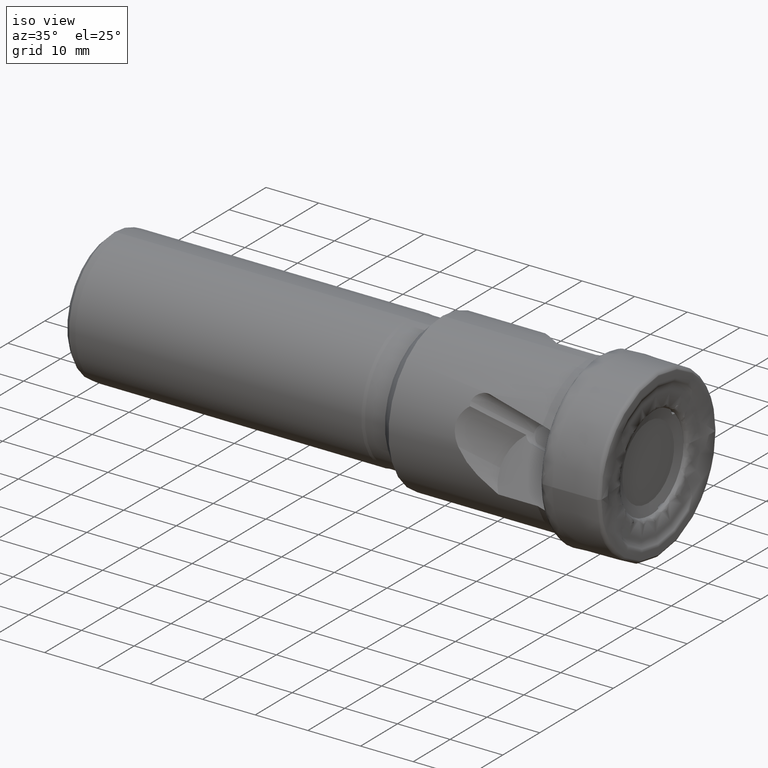
[diagram: clean part render]
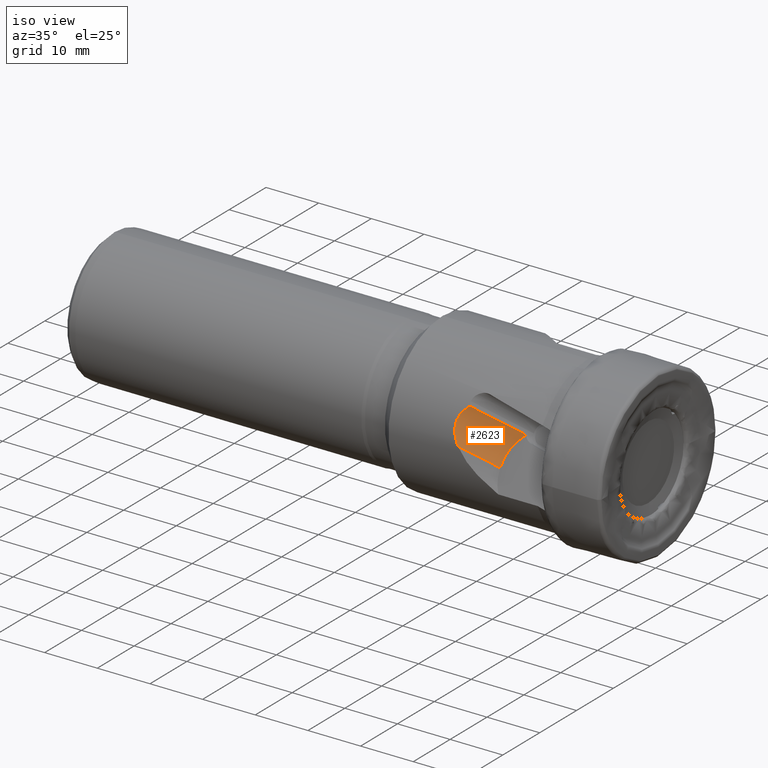
[diagram: same view with one face highlighted and labeled with its STEP entity id]
A machine part, iso view. The second image highlights one B-rep face of the part: STEP entity #2623.
In plain terms, the highlighted face is a freeform B-spline surface patch.
Its self-contained STEP definition (entity closure, byte-faithful):
#617 = CARTESIAN_POINT ( 'NONE',  ( -21.39409274321439000, -11.59241297158751200, -1.889408019898233500 ) ) ;
#630 = CARTESIAN_POINT ( 'NONE',  ( -26.47127490422718300, -12.52084812850206700, 7.682737932728550800 ) ) ;
#633 = CARTESIAN_POINT ( 'NONE',  ( -18.61935569548575500, -8.472429460093668000, 3.303118337052461500 ) ) ;
#637 = CARTESIAN_POINT ( 'NONE',  ( -27.27398968784495600, -14.62406471508240800, 1.390262999970150100 ) ) ;
#754 = CIRCLE ( 'NONE', #6171, 8.000000000000007100 ) ;
#756 = LINE ( 'NONE', #6274, #757 ) ;
#757 = VECTOR ( 'NONE', #6275, 999.9999999999998900 ) ;
#758 = LINE ( 'NONE', #6259, #760 ) ;
#760 = VECTOR ( 'NONE', #6258, 999.9999999999998900 ) ;
#799 = B_SPLINE_CURVE_WITH_KNOTS ( 'NONE', 3,
 ( #6282, #6281, #6276, #6283, #6284, #6285, #6286, #6287, #6288, #6289, #6290, #6291, #6292, #6293, #6294, #6295, #6296, #6297 ),
 .UNSPECIFIED., .F., .F.,
 ( 4, 2, 2, 2, 2, 2, 2, 2, 4 ),
 ( 0.009838044965779894200, 0.01076202846740341600, 0.01168601196902693800, 0.01260999547065045800, 0.01353397897227397900, 0.01445796247389750200, 0.01538194597552102300, 0.01630592947714454300, 0.01722991297876806300 ),
 .UNSPECIFIED. ) ;
#971 =( BOUNDED_SURFACE ( )  B_SPLINE_SURFACE ( 3, 1, ( 
 ( #4715, #4717 ),
 ( #4721, #4722 ),
 ( #4723, #4724 ),
 ( #4725, #4726 ) ),
 .UNSPECIFIED., .F., .F., .F. ) 
 B_SPLINE_SURFACE_WITH_KNOTS ( ( 4, 4 ),
 ( 2, 2 ),
 ( 0.0000000000000000000, 1.000000000000000000 ),
 ( 0.0000000000000000000, 1.000000000000000000 ),
 .UNSPECIFIED. ) 
 GEOMETRIC_REPRESENTATION_ITEM ( )  RATIONAL_B_SPLINE_SURFACE ( (
 ( 1.000000000000000000, 1.000000000000000000),
 ( 0.9394425770682067700, 0.9394425770682067700),
 ( 0.9394425770682067700, 0.9394425770682067700),
 ( 1.000000000000000000, 1.000000000000000000) ) ) 
 REPRESENTATION_ITEM ( '' )  SURFACE ( )  );
#1668 = EDGE_LOOP ( 'NONE', ( #7209, #7208, #7207, #7206 ) ) ;
#2623 = ADVANCED_FACE ( 'NONE', ( #4916 ), #971, .T. ) ;
#4715 = CARTESIAN_POINT ( 'NONE',  ( -26.52253704029061500, -12.54727868428142800, 7.711330770944426800 ) ) ;
#4717 = CARTESIAN_POINT ( 'NONE',  ( -18.61935569548574800, -8.472429460093662700, 3.303118337052455300 ) ) ;
#4721 = CARTESIAN_POINT ( 'NONE',  ( -28.31274094909192800, -13.34258875811776500, 6.387710750108464500 ) ) ;
#4722 = CARTESIAN_POINT ( 'NONE',  ( -20.40955960428706500, -9.267739533930001300, 1.979498316216493200 ) ) ;
#4723 = CARTESIAN_POINT ( 'NONE',  ( -29.29727408801918600, -14.44962236423444500, 4.545296789709444100 ) ) ;
#4724 = CARTESIAN_POINT ( 'NONE',  ( -21.39409274321432600, -10.37477314004667900, 0.1370843558174728000 ) ) ;
#4725 = CARTESIAN_POINT ( 'NONE',  ( -29.29727408801925400, -15.66726219577551200, 2.518804413993341200 ) ) ;
#4726 = CARTESIAN_POINT ( 'NONE',  ( -21.39409274321439000, -11.59241297158774700, -1.889408019898630500 ) ) ;
#4916 = FACE_OUTER_BOUND ( 'NONE', #1668, .T. ) ;
#4959 = EDGE_CURVE ( 'NONE', #7264, #7267, #756, .T. ) ;
#4960 = EDGE_CURVE ( 'NONE', #7267, #7273, #754, .T. ) ;
#4961 = EDGE_CURVE ( 'NONE', #7271, #7273, #758, .T. ) ;
#4962 = EDGE_CURVE ( 'NONE', #7271, #7264, #799, .T. ) ;
#6171 = AXIS2_PLACEMENT_3D ( 'NONE', #6278, #6279, #6280 ) ;
#6258 = DIRECTION ( 'NONE',  ( 0.7963251410003942000, 0.4105821113594589300, -0.4441718132010533100 ) ) ;
#6259 = CARTESIAN_POINT ( 'NONE',  ( -33.30987696375821400, -17.73614445999493900, 4.756941832000802800 ) ) ;
#6274 = CARTESIAN_POINT ( 'NONE',  ( -30.53513991602958200, -14.61616094850109700, 9.949468188951488700 ) ) ;
#6275 = DIRECTION ( 'NONE',  ( 0.7963251410003942000, 0.4105821113594589300, -0.4441718132010533100 ) ) ;
#6276 = CARTESIAN_POINT ( 'NONE',  ( -27.57648949090002700, -14.56582004210615200, 1.926724731791140000 ) ) ;
#6278 = CARTESIAN_POINT ( 'NONE',  ( -13.39409274321596800, -11.59241727851070400, -1.889405432037692100 ) ) ;
#6279 = DIRECTION ( 'NONE',  ( -6.280750547434431500E-007, -0.8571672319435910100, 0.5150381893430501200 ) ) ;
#6280 = DIRECTION ( 'NONE',  ( -0.9999999999998027100, 5.383653993527160200E-007, -3.234825670945636900E-007 ) ) ;
#6281 = CARTESIAN_POINT ( 'NONE',  ( -27.43176868174398600, -14.59883557565356700, 1.655646289116828400 ) ) ;
#6282 = CARTESIAN_POINT ( 'NONE',  ( -27.27398968784495600, -14.62406471508240800, 1.390262999970150100 ) ) ;
#6283 = CARTESIAN_POINT ( 'NONE',  ( -27.83281793971106000, -14.48128752257406400, 2.483484121080219400 ) ) ;
#6284 = CARTESIAN_POINT ( 'NONE',  ( -27.94509632879588400, -14.42924323169410500, 2.771501678537537000 ) ) ;
#6285 = CARTESIAN_POINT ( 'NONE',  ( -28.12144368365244100, -14.30545099122371000, 3.352365393453269800 ) ) ;
#6286 = CARTESIAN_POINT ( 'NONE',  ( -28.18598148995406300, -14.23385359519196000, 3.645277255488296000 ) ) ;
#6287 = CARTESIAN_POINT ( 'NONE',  ( -28.25718177608955600, -14.06886222871166800, 4.237658554941574200 ) ) ;
#6288 = CARTESIAN_POINT ( 'NONE',  ( -28.26288066656047700, -13.97463928136250600, 4.538736594927330600 ) ) ;
#6289 = CARTESIAN_POINT ( 'NONE',  ( -28.20628378272547100, -13.77244715256610500, 5.119606659901356800 ) ) ;
#6290 = CARTESIAN_POINT ( 'NONE',  ( -28.14410711578809600, -13.66284754215680900, 5.404701276540281500 ) ) ;
#6291 = CARTESIAN_POINT ( 'NONE',  ( -27.95166542261059200, -13.43337927145852700, 5.952186169635902000 ) ) ;
#6292 = CARTESIAN_POINT ( 'NONE',  ( -27.82423150567698400, -13.31634494920204900, 6.208300863596060800 ) ) ;
#6293 = CARTESIAN_POINT ( 'NONE',  ( -27.51362049685024400, -13.08083315946329800, 6.690279984675674600 ) ) ;
#6294 = CARTESIAN_POINT ( 'NONE',  ( -27.32943002294154400, -12.96214182078310500, 6.916193427107767600 ) ) ;
#6295 = CARTESIAN_POINT ( 'NONE',  ( -26.92696076787608200, -12.73529076522722500, 7.325518495531993900 ) ) ;
#6296 = CARTESIAN_POINT ( 'NONE',  ( -26.70709480828309500, -12.62579536177101100, 7.511701463598348600 ) ) ;
#6297 = CARTESIAN_POINT ( 'NONE',  ( -26.47127490422718300, -12.52084812850206700, 7.682737932728550800 ) ) ;
#7206 = ORIENTED_EDGE ( 'NONE', *, *, #4959, .F. ) ;
#7207 = ORIENTED_EDGE ( 'NONE', *, *, #4960, .F. ) ;
#7208 = ORIENTED_EDGE ( 'NONE', *, *, #4961, .T. ) ;
#7209 = ORIENTED_EDGE ( 'NONE', *, *, #4962, .F. ) ;
#7264 = VERTEX_POINT ( 'NONE', #630 ) ;
#7267 = VERTEX_POINT ( 'NONE', #633 ) ;
#7271 = VERTEX_POINT ( 'NONE', #637 ) ;
#7273 = VERTEX_POINT ( 'NONE', #617 ) ;